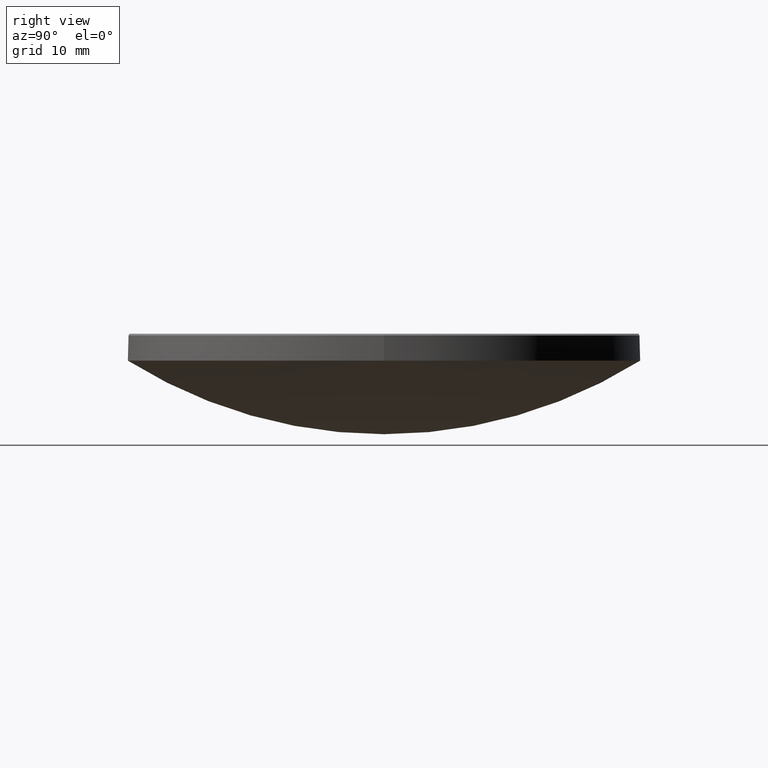
[diagram: clean part render]
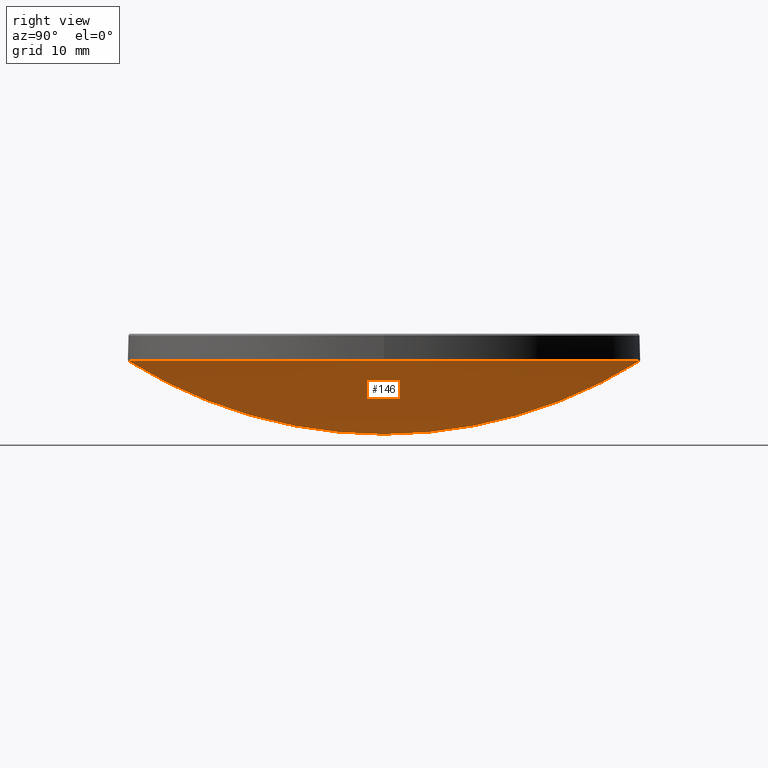
[diagram: same view with one face highlighted and labeled with its STEP entity id]
A machine part, right view. The second image highlights one B-rep face of the part: STEP entity #146.
In plain terms, the highlighted spherical surface has radius 47.87 mm.
Its self-contained STEP definition (entity closure, byte-faithful):
#1 = CARTESIAN_POINT ( 'NONE',  ( 0.000000000000000000, 0.000000000000000000, 53.57557023628872628 ) ) ;
#21 = VERTEX_POINT ( 'NONE', #211 ) ;
#22 = AXIS2_PLACEMENT_3D ( 'NONE', #1, #241, #109 ) ;
#26 = DIRECTION ( 'NONE',  ( -0.000000000000000000, -0.000000000000000000, 1.000000000000000000 ) ) ;
#32 = CIRCLE ( 'NONE', #172, 47.86999999999999744 ) ;
#34 = CARTESIAN_POINT ( 'NONE',  ( 0.000000000000000000, 0.000000000000000000, 53.57557023628872628 ) ) ;
#45 = DIRECTION ( 'NONE',  ( -1.000000000000000000, 1.224646799147353207E-16, 0.000000000000000000 ) ) ;
#46 = EDGE_CURVE ( 'NONE', #98, #119, #212, .T. ) ;
#59 = ORIENTED_EDGE ( 'NONE', *, *, #61, .F. ) ;
#61 = EDGE_CURVE ( 'NONE', #134, #21, #32, .T. ) ;
#65 = CARTESIAN_POINT ( 'NONE',  ( 0.000000000000000000, 25.39999999999999858, 12.99999999999999822 ) ) ;
#69 = DIRECTION ( 'NONE',  ( 1.000000000000000000, -0.000000000000000000, 0.000000000000000000 ) ) ;
#75 = CIRCLE ( 'NONE', #234, 47.86999999999999744 ) ;
#79 = AXIS2_PLACEMENT_3D ( 'NONE', #85, #267, #238 ) ;
#85 = CARTESIAN_POINT ( 'NONE',  ( 0.000000000000000000, 0.000000000000000000, 13.00000000000000000 ) ) ;
#89 = DIRECTION ( 'NONE',  ( -1.224646799147353207E-16, -1.000000000000000000, 0.000000000000000000 ) ) ;
#98 = VERTEX_POINT ( 'NONE', #193 ) ;
#109 = DIRECTION ( 'NONE',  ( 0.000000000000000000, 1.000000000000000000, 0.000000000000000000 ) ) ;
#119 = VERTEX_POINT ( 'NONE', #65 ) ;
#120 = ORIENTED_EDGE ( 'NONE', *, *, #46, .F. ) ;
#129 = SPHERICAL_SURFACE ( 'NONE', #22, 47.86999999999999744 ) ;
#134 = VERTEX_POINT ( 'NONE', #237 ) ;
#146 = ADVANCED_FACE ( 'NONE', ( #194 ), #129, .T. ) ;
#153 = DIRECTION ( 'NONE',  ( 1.000000000000000000, 0.000000000000000000, 0.000000000000000000 ) ) ;
#159 = EDGE_CURVE ( 'NONE', #21, #98, #224, .T. ) ;
#166 = EDGE_LOOP ( 'NONE', ( #59, #261, #120, #259 ) ) ;
#172 = AXIS2_PLACEMENT_3D ( 'NONE', #176, #45, #89 ) ;
#176 = CARTESIAN_POINT ( 'NONE',  ( 0.000000000000000000, 0.000000000000000000, 53.57557023628872628 ) ) ;
#178 = AXIS2_PLACEMENT_3D ( 'NONE', #240, #26, #153 ) ;
#193 = CARTESIAN_POINT ( 'NONE',  ( 25.39999999999999503, 3.110602869834276471E-15, 13.00000000000000000 ) ) ;
#194 = FACE_OUTER_BOUND ( 'NONE', #166, .T. ) ;
#211 = CARTESIAN_POINT ( 'NONE',  ( -3.110602869834276865E-15, -25.39999999999999858, 12.99999999999999822 ) ) ;
#212 = CIRCLE ( 'NONE', #79, 25.39999999999999503 ) ;
#224 = CIRCLE ( 'NONE', #178, 25.39999999999999503 ) ;
#234 = AXIS2_PLACEMENT_3D ( 'NONE', #34, #69, #243 ) ;
#237 = CARTESIAN_POINT ( 'NONE',  ( 0.000000000000000000, 2.931192113759189857E-15, 5.705570236288731500 ) ) ;
#238 = DIRECTION ( 'NONE',  ( 1.000000000000000000, 0.000000000000000000, 0.000000000000000000 ) ) ;
#240 = CARTESIAN_POINT ( 'NONE',  ( 0.000000000000000000, 0.000000000000000000, 13.00000000000000000 ) ) ;
#241 = DIRECTION ( 'NONE',  ( -1.000000000000000000, 0.000000000000000000, 0.000000000000000000 ) ) ;
#243 = DIRECTION ( 'NONE',  ( 0.000000000000000000, 0.000000000000000000, -1.000000000000000000 ) ) ;
#259 = ORIENTED_EDGE ( 'NONE', *, *, #159, .F. ) ;
#261 = ORIENTED_EDGE ( 'NONE', *, *, #275, .T. ) ;
#267 = DIRECTION ( 'NONE',  ( -0.000000000000000000, -0.000000000000000000, 1.000000000000000000 ) ) ;
#275 = EDGE_CURVE ( 'NONE', #134, #119, #75, .T. ) ;